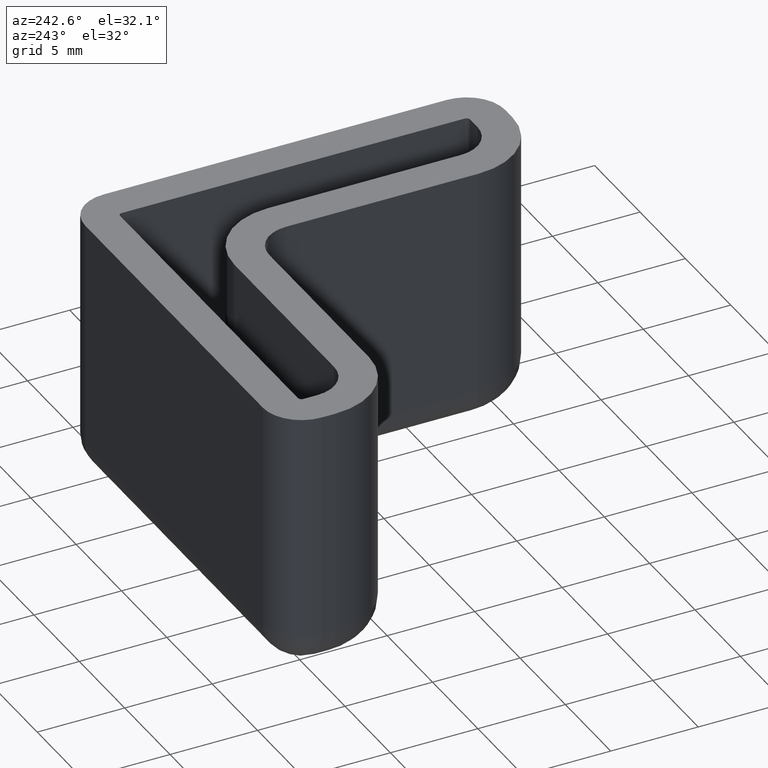
[diagram: clean part render]
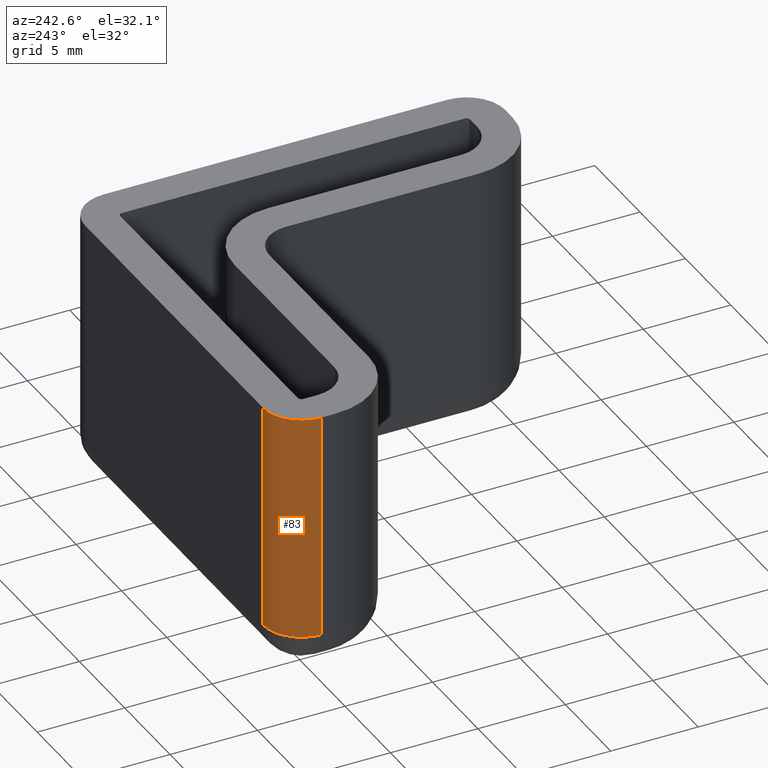
[diagram: same view with one face highlighted and labeled with its STEP entity id]
A machine part, auxiliary view. The second image highlights one B-rep face of the part: STEP entity #83.
In plain terms, the highlighted cylindrical surface (partial cylindrical patch) has radius 2.2 mm, axis along (0, 0, -1).
Its self-contained STEP definition (entity closure, byte-faithful):
#83 = ADVANCED_FACE( '', ( #132 ), #133, .T. );
#132 = FACE_OUTER_BOUND( '', #211, .T. );
#133 = CYLINDRICAL_SURFACE( '', #212, 2.20000000000000 );
#211 = EDGE_LOOP( '', ( #423, #424, #425, #426 ) );
#212 = AXIS2_PLACEMENT_3D( '', #427, #428, #429 );
#423 = ORIENTED_EDGE( '', *, *, #686, .F. );
#424 = ORIENTED_EDGE( '', *, *, #687, .T. );
#425 = ORIENTED_EDGE( '', *, *, #688, .T. );
#426 = ORIENTED_EDGE( '', *, *, #643, .F. );
#427 = CARTESIAN_POINT( '', ( -19.8000000000000, -0.200000000000000, -15.0000000000000 ) );
#428 = DIRECTION( '', ( 0.000000000000000, 0.000000000000000, -1.00000000000000 ) );
#429 = DIRECTION( '', ( 1.00000000000000, -1.83690953073357E-016, 0.000000000000000 ) );
#643 = EDGE_CURVE( '', #742, #744, #745, .T. );
#686 = EDGE_CURVE( '', #821, #742, #823, .T. );
#687 = EDGE_CURVE( '', #821, #824, #825, .T. );
#688 = EDGE_CURVE( '', #824, #744, #826, .T. );
#742 = VERTEX_POINT( '', #899 );
#744 = VERTEX_POINT( '', #902 );
#745 = CIRCLE( '', #903, 2.20000000000000 );
#821 = VERTEX_POINT( '', #1003 );
#823 = LINE( '', #1006, #1007 );
#824 = VERTEX_POINT( '', #1008 );
#825 = CIRCLE( '', #1009, 2.20000000000000 );
#826 = LINE( '', #1010, #1011 );
#899 = CARTESIAN_POINT( '', ( -19.8000000000000, 2.00000000000000, 0.000000000000000 ) );
#902 = CARTESIAN_POINT( '', ( -22.0000000000000, -0.200000000000000, 0.000000000000000 ) );
#903 = AXIS2_PLACEMENT_3D( '', #1109, #1110, #1111 );
#1003 = CARTESIAN_POINT( '', ( -19.8000000000000, 2.00000000000000, -13.0000000000000 ) );
#1006 = CARTESIAN_POINT( '', ( -19.8000000000000, 2.00000000000000, -15.0000000000000 ) );
#1007 = VECTOR( '', #1188, 1000.00000000000 );
#1008 = CARTESIAN_POINT( '', ( -22.0000000000000, -0.200000000000000, -13.0000000000000 ) );
#1009 = AXIS2_PLACEMENT_3D( '', #1189, #1190, #1191 );
#1010 = CARTESIAN_POINT( '', ( -22.0000000000000, -0.200000000000000, -15.0000000000000 ) );
#1011 = VECTOR( '', #1192, 1000.00000000000 );
#1109 = CARTESIAN_POINT( '', ( -19.8000000000000, -0.200000000000000, 0.000000000000000 ) );
#1110 = DIRECTION( '', ( 0.000000000000000, 0.000000000000000, 1.00000000000000 ) );
#1111 = DIRECTION( '', ( 1.83690953073357E-016, 1.00000000000000, 0.000000000000000 ) );
#1188 = DIRECTION( '', ( 0.000000000000000, 0.000000000000000, 1.00000000000000 ) );
#1189 = CARTESIAN_POINT( '', ( -19.8000000000000, -0.200000000000000, -13.0000000000000 ) );
#1190 = DIRECTION( '', ( 0.000000000000000, 0.000000000000000, 1.00000000000000 ) );
#1191 = DIRECTION( '', ( -1.00000000000000, 1.22460635382238E-016, 0.000000000000000 ) );
#1192 = DIRECTION( '', ( 0.000000000000000, 0.000000000000000, 1.00000000000000 ) );